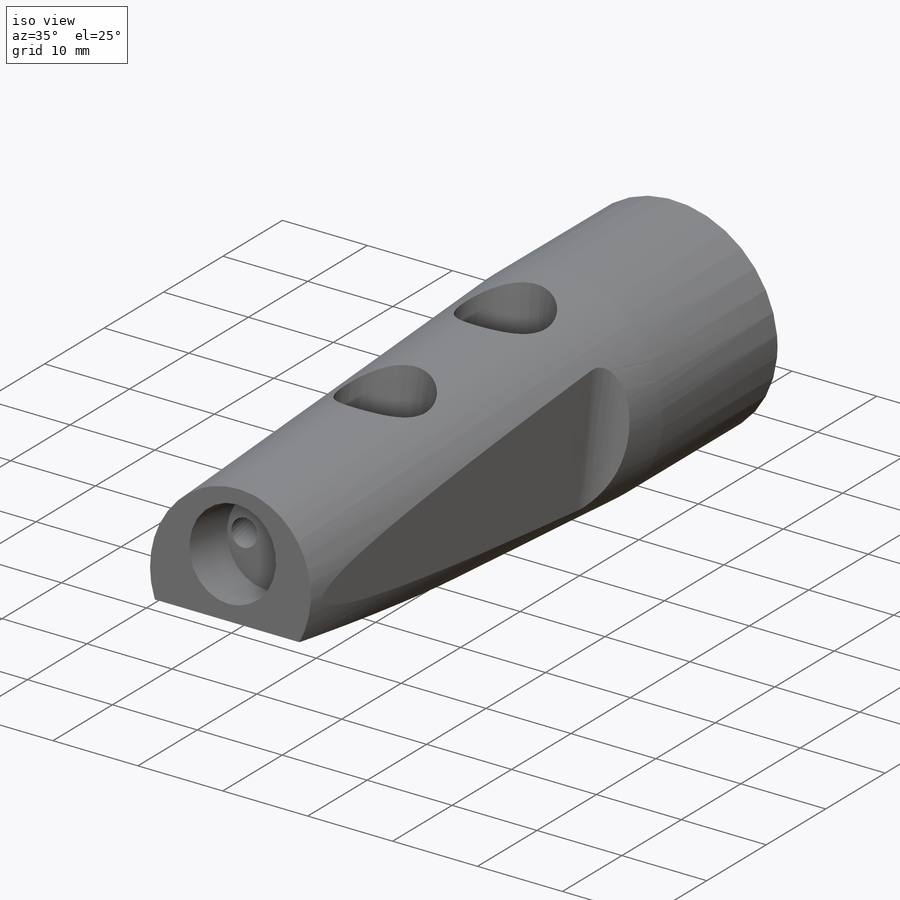
[diagram: iso view]
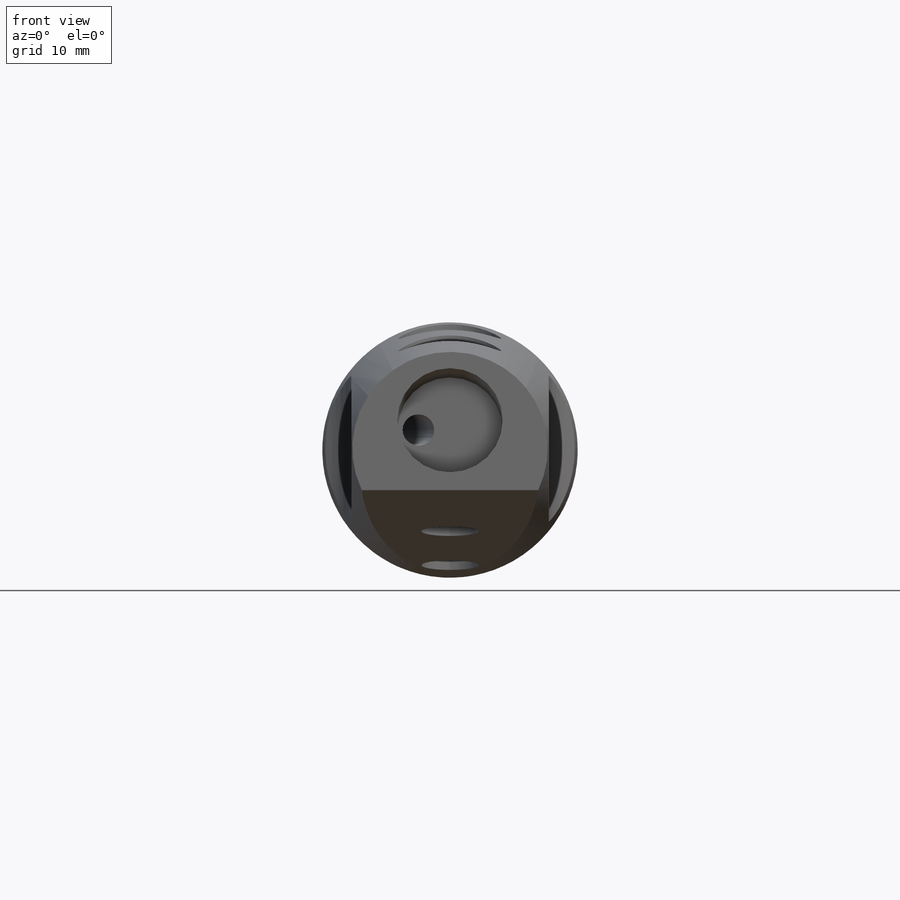
[diagram: front view]
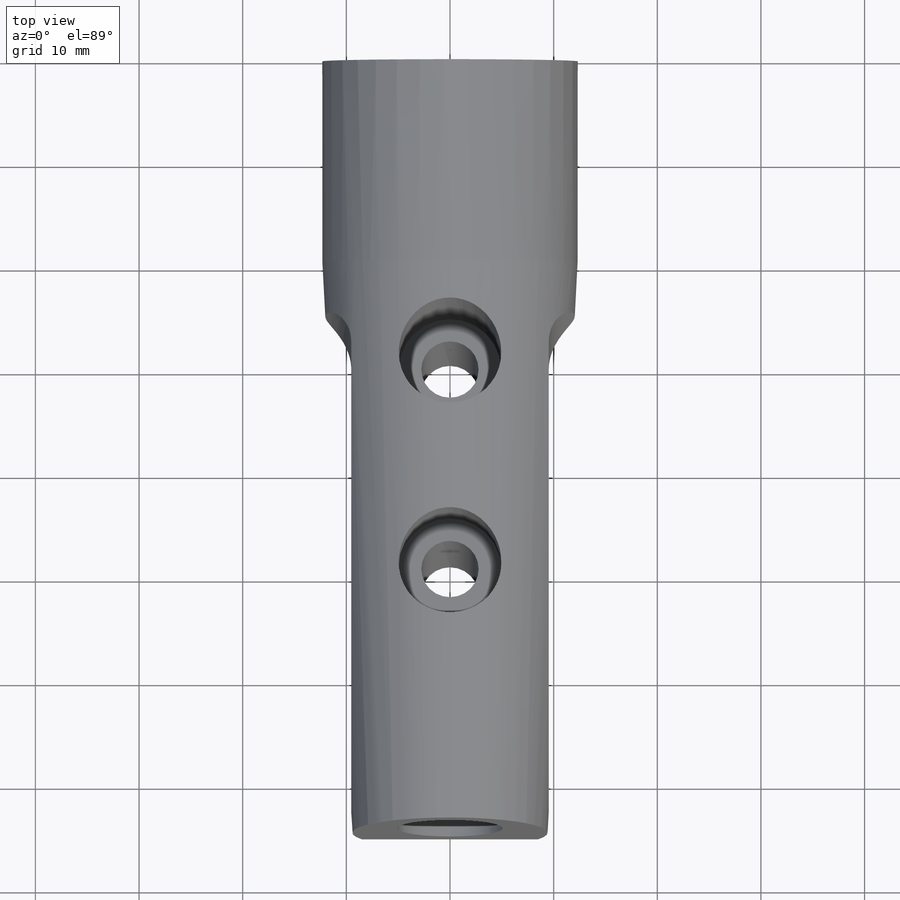
[diagram: top view]
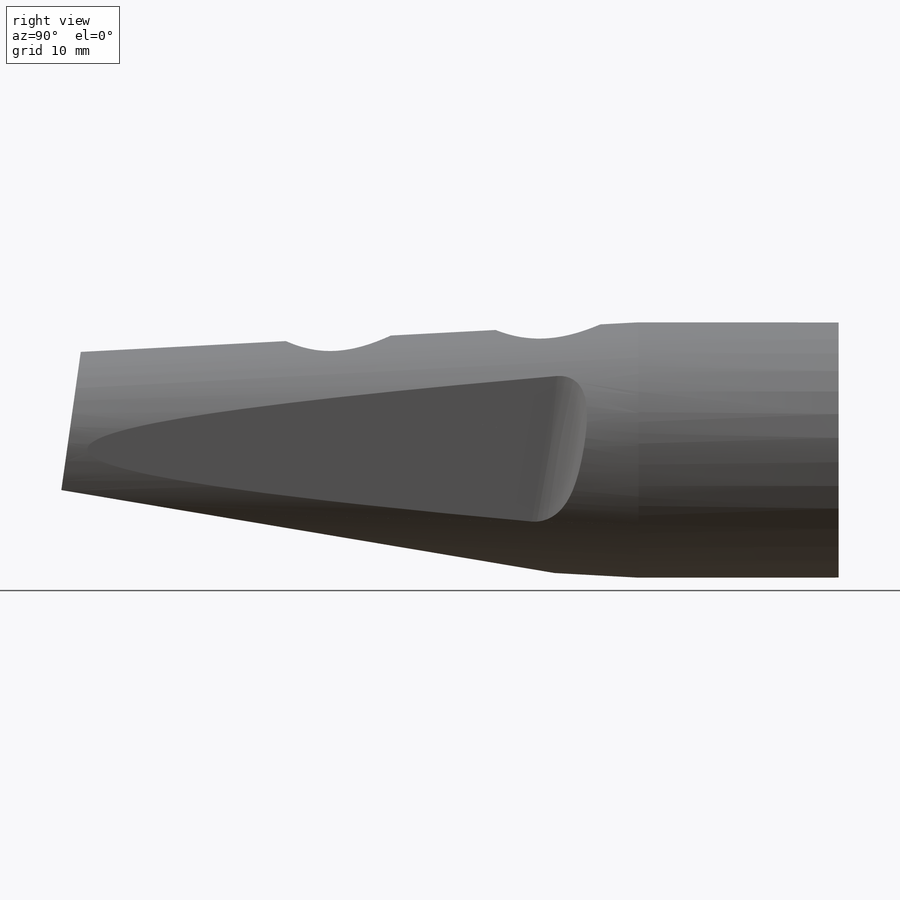
[diagram: right view]
SOLIDWORKS PART (.sldprt)
format: sldprt  version: not decoded by parser v0  size: 456,192 bytes
history: native  units: mm
features: sketch x17, cut_extrude x8, plane x5, extrude x2, material x1, sweep x1, pattern_circular x1 (+13 scaffold rows collapsed)
feature tree (48):
  scaffold x13  (default folders/planes/origin — collapsed)
  material  "Cast Alloy Steel"
  sketch  "Sketch1"  dims[D1=24.638mm]
  extrude  "Boss-Extrude1"  Depth=19.304mm
  sketch  "Sketch2"
  plane  "Plane1"
  plane  "Plane2"  Offset=54.61mm
  sketch  "Sketch3"  dims[D1=18.8468mm]
  sketch  "Sketch5"  dims[c1.D1=48.26mm c1.D2=8.128mm c1.D3=~12.695098mm c2.D2=13.462mm]
  cut_extrude  "Cut-Extrude2"  Depth=127mm
  sketch  "Sketch6"  dims[c1.D3=8.382mm c1.D1=19.05mm c1.D2=9.525mm c2.D3=9.1694mm]
  sketch  "Sketch8"  dims[D1=8.128mm]
  cut_extrude  "Cut-Extrude3"  Depth=127mm
  sketch  "Sketch10"  dims[D1=5.5245mm D2=4.572mm D3=19.7612mm]
  cut_extrude  "Cut-Extrude4"  [1 undecoded]
  plane  "Plane3"  Offset=23.114mm
  sketch  "Sketch11"  dims[D1=9.8806mm]
  cut_extrude  "Cut-Extrude5"  Depth=10.16mm
  plane  "Plane4"  Offset=3.81mm
  sketch  "Sketch12"  dims[D1=9.906mm]
  cut_extrude  "Cut-Extrude6"  Depth=5.334mm
  sketch  "Sketch13"  dims[D1=17.018mm]
  cut_extrude  "Cut-Extrude7"  Depth=16.764mm
  sketch  "Sketch16"  dims[D1=10.16mm]
  cut_extrude  "Cut-Extrude8"  Depth=6.3754mm
  sketch  "Sketch17"  dims[D1=~3.777013mm]
  extrude  "Boss-Extrude2"  Depth=1.27mm
  sketch  "Sketch18"  dims[D1=3.048mm D2=3.048mm]
  sketch  "Sketch19"  dims[D1=3.048mm]
  plane  "Plane5"
  sketch  "Sketch21"
  sweep  "Cut-Sweep2"
  sketch  "Sketch22"  dims[D1=6.35mm D2=3.302mm]
  cut_extrude  "Cut-Extrude9"  Depth=17.78mm
  pattern_circular  "CirPattern1"  Count=2 Angle=360deg
  sketch  "Sketch23"
decode coverage: 24 of 29 modeling features carry decoded parameters
note: ~ marks probable driven/reference dimensions
note: 1 parameter value undecoded
note: suppression state not decoded; provenance and decode notes live in map.json
